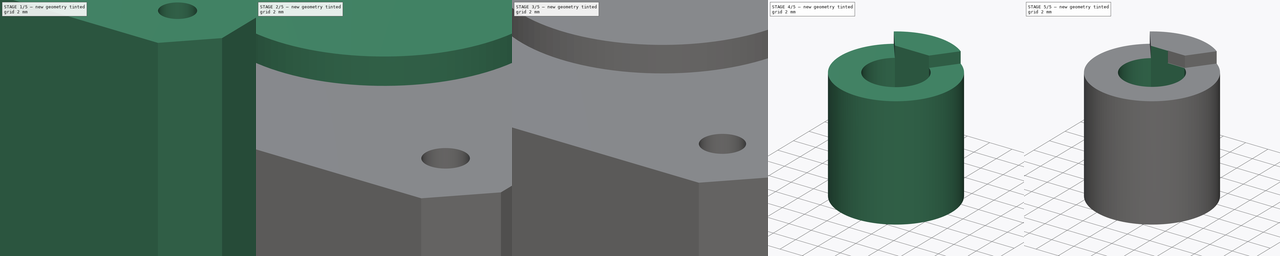
[diagram: build sequence overview — one tinted view per stage of 5, left to right]
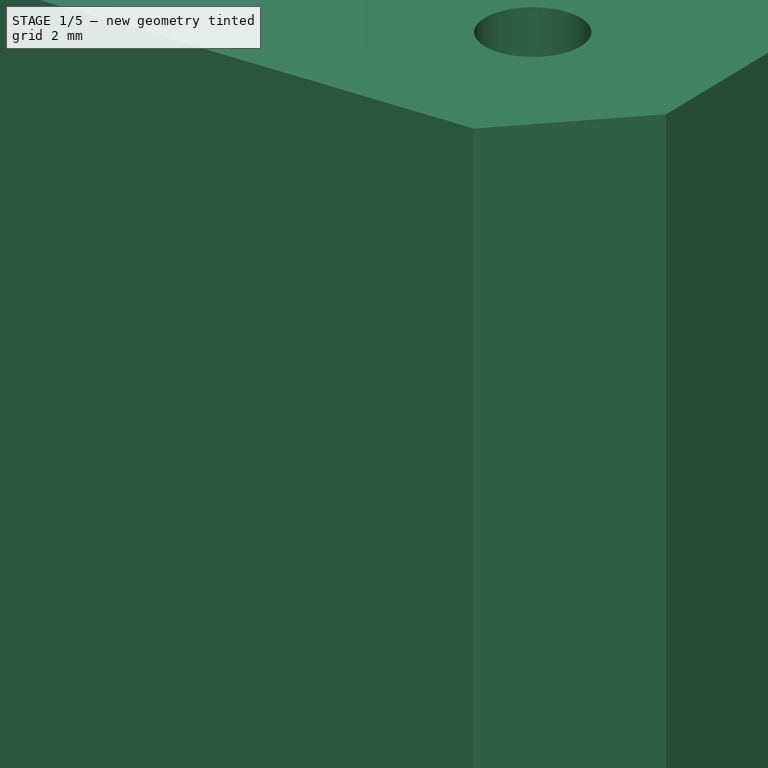
[diagram: stage 1 of 5 — iso view after this stage's code; geometry added in this stage tinted green]
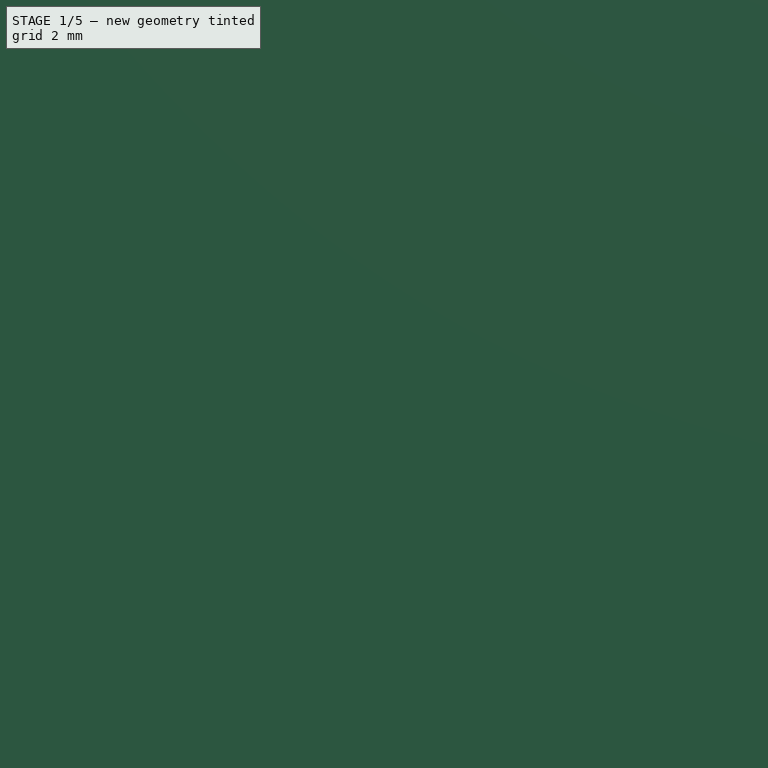
[diagram: stage 1 of 5 — front view after this stage's code; geometry added in this stage tinted green]
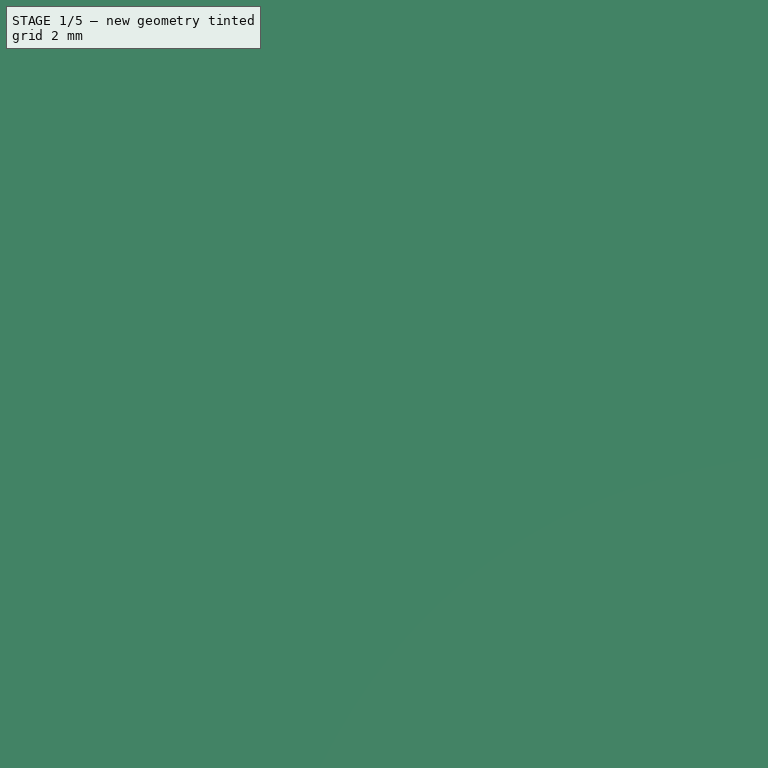
[diagram: stage 1 of 5 — top view after this stage's code; geometry added in this stage tinted green]
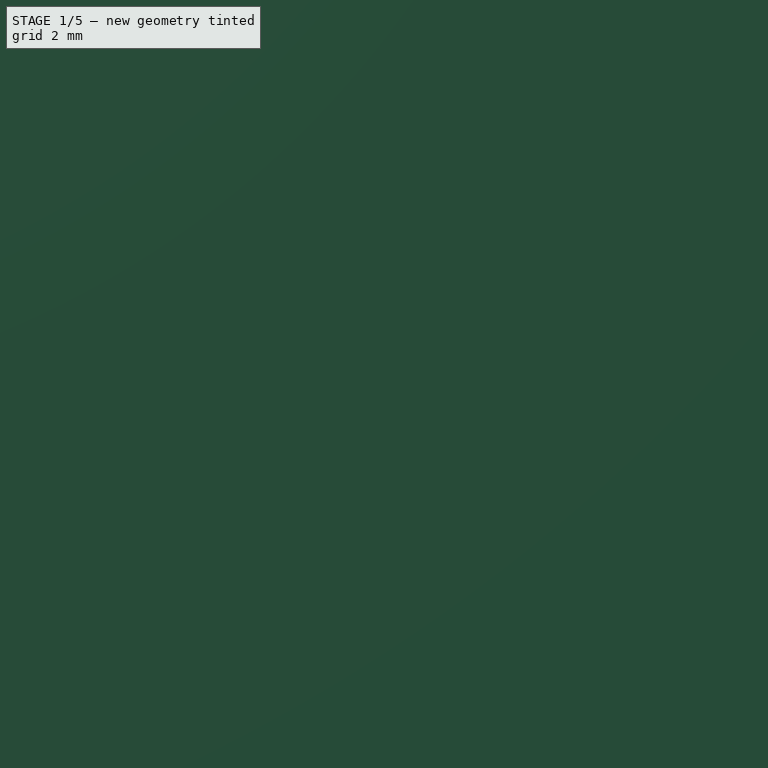
[diagram: stage 1 of 5 — right view after this stage's code; geometry added in this stage tinted green]
FCSTD DOCUMENT  (FreeCAD 0.21R33668 +26 (Git))
Label: fittings-test
License: All rights reserved
LicenseURL: http://en.wikipedia.org/wiki/All_rights_reserved
objects: Sketcher::SketchObject×15, PartDesign::Pad×13, PartDesign::Body×4, PartDesign::SubShapeBinder×3, PartDesign::Hole×2
note: 52 computed .brp shape members not serialized (recipe doc carries the construction recipe); baked Part::Feature solids carry a one-line shape summary decoded from their .brp

FEATURE [Sketcher::SketchObject] Sketch
  FullyConstrained = true
  MapMode = 5
  Support = -> [XY_Plane]
  sketch-geometry (18):
    g0: LineSegment StartX=-17.6145 StartY=21.15 StartZ=0 EndX=17.6145 EndY=21.15 EndZ=0
    g1: LineSegment StartX=17.6145 StartY=21.15 StartZ=0 EndX=21.15 EndY=17.6145 EndZ=0
    g2: LineSegment StartX=21.15 StartY=17.6145 StartZ=0 EndX=21.15 EndY=-17.6145 EndZ=0
    g3: LineSegment StartX=21.15 StartY=-17.6145 StartZ=0 EndX=17.6145 EndY=-21.15 EndZ=0
    g4: LineSegment StartX=17.6145 StartY=-21.15 StartZ=0 EndX=-17.6145 EndY=-21.15 EndZ=0
    g5: LineSegment StartX=-17.6145 StartY=-21.15 StartZ=0 EndX=-21.15 EndY=-17.6145 EndZ=0
    g6: LineSegment StartX=-21.15 StartY=-17.6145 StartZ=0 EndX=-21.15 EndY=17.6145 EndZ=0
    g7: LineSegment StartX=-21.15 StartY=17.6145 StartZ=0 EndX=-17.6145 EndY=21.15 EndZ=0
    g8: LineSegment StartX=-21.15 StartY=17.6145 StartZ=0 EndX=21.15 EndY=17.6145 EndZ=0
    g9: LineSegment StartX=-17.6145 StartY=-21.15 StartZ=0 EndX=-17.6145 EndY=21.15 EndZ=0
    g10: LineSegment StartX=17.6145 StartY=21.15 StartZ=0 EndX=17.6145 EndY=-21.15 EndZ=0
    g11: LineSegment StartX=21.15 StartY=-17.6145 StartZ=0 EndX=-21.15 EndY=-17.6145 EndZ=0
    g12: GeomPoint X=-17.6145 Y=17.6145 Z=0
    g13: GeomPoint X=17.6145 Y=17.6145 Z=0
    g14: GeomPoint X=17.6145 Y=-17.6145 Z=0
    g15: GeomPoint X=-17.6145 Y=-17.6145 Z=0
    g16: LineSegment StartX=-17.6145 StartY=17.6145 StartZ=0 EndX=17.6145 EndY=-17.6145 EndZ=0
    g17: LineSegment StartX=17.6145 StartY=17.6145 StartZ=0 EndX=-17.6145 EndY=-17.6145 EndZ=0
  constraints (44):
    c: Horizontal(g0)
    c: Coincident(g1,g0)
    c: Coincident(g2,g1)
    c: Vertical(g2)
    c: Coincident(g3,g2)
    c: Coincident(g4,g3)
    c: Horizontal(g4)
    c: Coincident(g5,g4)
    c: Coincident(g6,g5)
    c: Vertical(g6)
    c: Coincident(g7,g6)
    c: Coincident(g7,g0)
    c: Coincident(g8,g6)
    c: Coincident(g8,g1)
    c: Horizontal(g8)
    c: Coincident(g9,g4)
    c: Coincident(g9,g0)
    c: Vertical(g9)
    c: Distance(g8) = 42.3
    c: Distance(g9) = 42.3
    c: Equal(g3,g5)
    c: Equal(g1,g3)
    c: Equal(g7,g1)
    c: Coincident(g10,g0)
    c: Coincident(g10,g3)
    c: Vertical(g10)
    c: Coincident(g11,g2)
    c: Coincident(g11,g5)
    c: PointOnObject(g12,g8)
    c: PointOnObject(g13,g8)
    c: PointOnObject(g14,g11)
    c: PointOnObject(g15,g9)
    c: PointOnObject(g12,g9)
    c: PointOnObject(g14,g10)
    c: PointOnObject(g15,g11)
    c: Coincident(g16,g12)
    c: Coincident(g16,g14)
    c: Coincident(g17,g13)
    c: Coincident(g17,g15)
    c: PointOnObject(g-1,g16)
    c: PointOnObject(g13,g10)
    c: PointOnObject(g-1,g17)
    c: Equal(g2,g4)
    c: Distance(g1) = 5
FEATURE [PartDesign::Pad] Pad
  Direction = (0,0,1)
  Length = 40
  Length2 = 10
  Profile = -> Sketch
  ReferenceAxis = -> Sketch [N_Axis]
  Type = 0
FEATURE [Sketcher::SketchObject] Sketch001
  FullyConstrained = true
  MapMode = 5
  Placement = pos=(0,0,40) rot=(0,0,1;0rad)
  Support = -> [Pad]
  sketch-geometry (10):
    g0: Circle CenterX=15.5 CenterY=15.5 CenterZ=0 NormalX=0 NormalY=0 NormalZ=1 AngleXU=0 Radius=1.5
    g1: Circle CenterX=-15.5 CenterY=15.5 CenterZ=0 NormalX=0 NormalY=0 NormalZ=1 AngleXU=0 Radius=1.5
    g2: Circle CenterX=-15.5 CenterY=-15.5 CenterZ=0 NormalX=0 NormalY=0 NormalZ=1 AngleXU=0 Radius=1.5
    g3: Circle CenterX=15.5 CenterY=-15.5 CenterZ=0 NormalX=0 NormalY=0 NormalZ=1 AngleXU=0 Radius=1.5
    g4: LineSegment StartX=-15.5 StartY=15.5 StartZ=0 EndX=15.5 EndY=15.5 EndZ=0
    g5: LineSegment StartX=15.5 StartY=15.5 StartZ=0 EndX=15.5 EndY=-15.5 EndZ=0
    g6: LineSegment StartX=15.5 StartY=-15.5 StartZ=0 EndX=-15.5 EndY=-15.5 EndZ=0
    g7: LineSegment StartX=-15.5 StartY=-15.5 StartZ=0 EndX=-15.5 EndY=15.5 EndZ=0
    g8: LineSegment StartX=-15.5 StartY=15.5 StartZ=0 EndX=15.5 EndY=-15.5 EndZ=0
    g9: LineSegment StartX=15.5 StartY=15.5 StartZ=0 EndX=-15.5 EndY=-15.5 EndZ=0
  constraints (24):
    c: Diameter(g0) = 3
    c: Equal(g1,g0)
    c: Equal(g1,g2)
    c: Equal(g0,g3)
    c: Coincident(g4,g5)
    c: Coincident(g5,g6)
    c: Coincident(g6,g7)
    c: Coincident(g7,g4)
    c: Horizontal(g4)
    c: Horizontal(g6)
    c: Vertical(g5)
    c: Vertical(g7)
    c: Coincident(g4,g1)
    c: Coincident(g5,g3)
    c: Coincident(g4,g0)
    c: Coincident(g6,g2)
    c: Distance(g4) = 31
    c: Coincident(g8,g1)
    c: Coincident(g8,g3)
    c: Coincident(g9,g0)
    c: Coincident(g9,g2)
    c: PointOnObject(g-1,g8)
    c: PointOnObject(g-1,g9)
    c: Equal(g4,g5)
FEATURE [PartDesign::Hole] Hole
  BaseFeature = -> Pad
  CustomThreadClearance = 0
  Depth = 4.5
  DepthType = 0
  Diameter = 3
  DrillForDepth = false
  DrillPoint = 1
  DrillPointAngle = 118
  HoleCutCountersinkAngle = 90
  HoleCutCustomValues = false
  HoleCutDepth = 0
  HoleCutDiameter = 6.1
  HoleCutType = 0
  ModelThread = false
  Profile = -> Sketch001
  Tapered = false
  TaperedAngle = 90
  ThreadClass = 0
  ThreadDepth = 4.5
  ThreadDepthType = 0
  ThreadDirection = 0
  ThreadFit = 0
  ThreadSize = 0
  ThreadType = 0
  Threaded = false
  UseCustomThreadClearance = false
FEATURE [Sketcher::SketchObject] Sketch002
  ExternalGeometry = -> [Hole]
  FullyConstrained = true
  MapMode = 5
  Support = -> [XY_Plane]
  sketch-geometry (4):
    g0: Circle CenterX=-15.5 CenterY=15.5 CenterZ=0 NormalX=0 NormalY=0 NormalZ=1 AngleXU=0 Radius=1.5
    g1: Circle CenterX=-15.5 CenterY=-15.5 CenterZ=0 NormalX=0 NormalY=0 NormalZ=1 AngleXU=0 Radius=1.5
    g2: Circle CenterX=15.5 CenterY=-15.5 CenterZ=0 NormalX=0 NormalY=0 NormalZ=1 AngleXU=0 Radius=1.5
    g3: Circle CenterX=15.5 CenterY=15.5 CenterZ=0 NormalX=0 NormalY=0 NormalZ=1 AngleXU=0 Radius=1.5
  constraints (8):
    c: Coincident(g0,g-3)
    c: Coincident(g1,g-6)
    c: Coincident(g2,g-5)
    c: Coincident(g3,g-4)
    c: Equal(g-3,g1)
    c: Equal(g2,g-3)
    c: Equal(g-4,g0)
    c: Equal(g0,g3)
FEATURE [PartDesign::Hole] Hole001
  BaseFeature = -> Hole
  CustomThreadClearance = 0
  Depth = 4.5
  DepthType = 0
  Diameter = 3
  DrillForDepth = false
  DrillPoint = 1
  DrillPointAngle = 118
  HoleCutCountersinkAngle = 90
  HoleCutCustomValues = false
  HoleCutDepth = 0
  HoleCutDiameter = 6.1
  HoleCutType = 0
  ModelThread = false
  Profile = -> Sketch002
  Reversed = true
  Tapered = false
  TaperedAngle = 90
  ThreadClass = 0
  ThreadDepth = 4.5
  ThreadDepthType = 0
  ThreadDirection = 0
  ThreadFit = 0
  ThreadSize = 0
  ThreadType = 0
  Threaded = false
  UseCustomThreadClearance = false
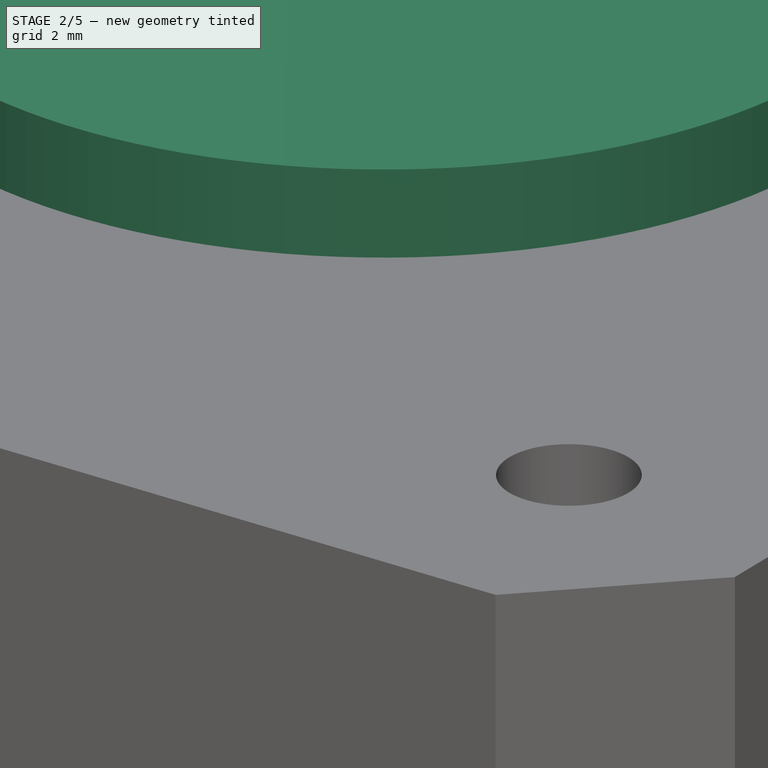
[diagram: stage 2 of 5 — iso view after this stage's code; geometry added in this stage tinted green]
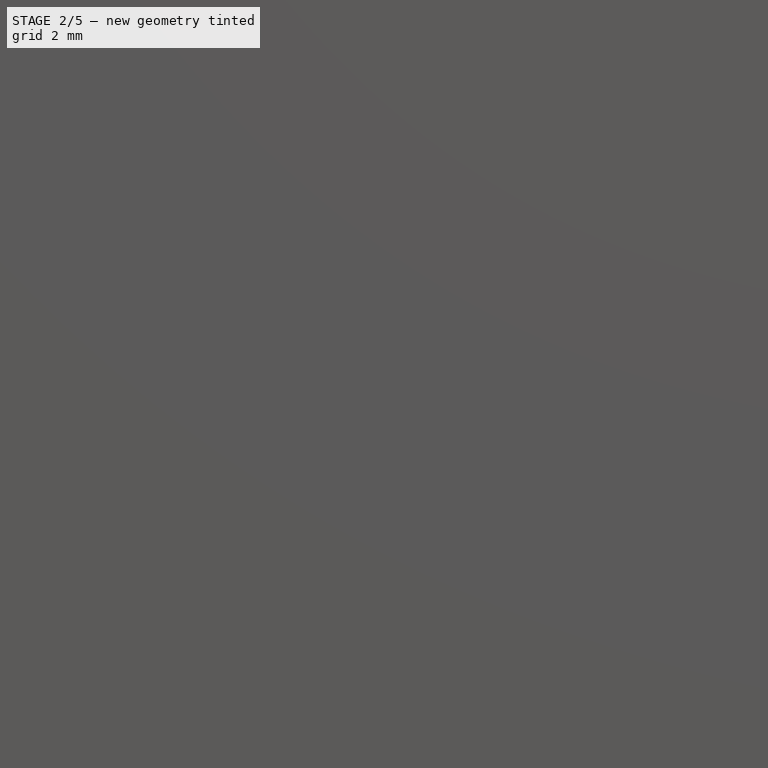
[diagram: stage 2 of 5 — front view after this stage's code; geometry added in this stage tinted green]
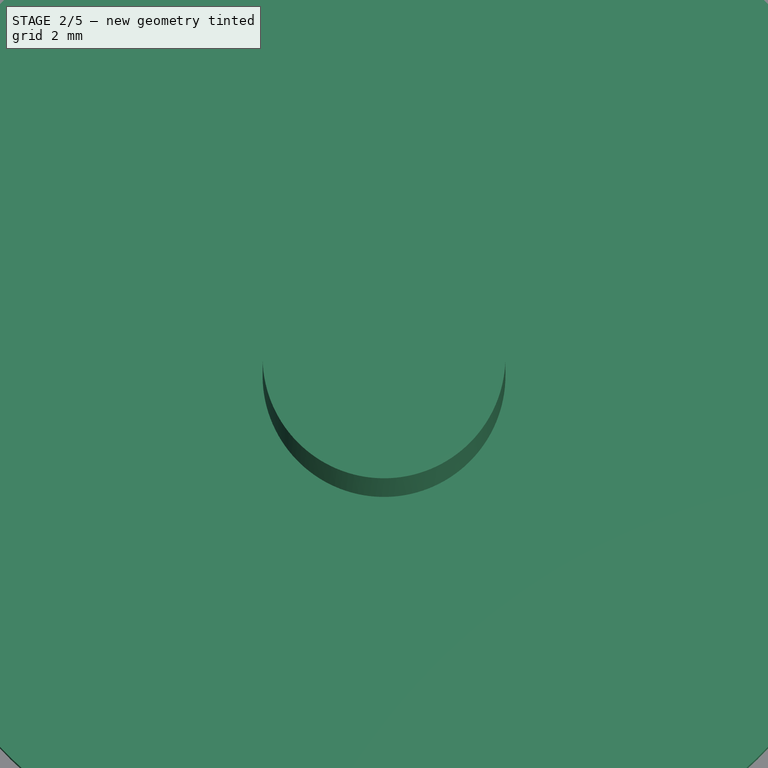
[diagram: stage 2 of 5 — top view after this stage's code; geometry added in this stage tinted green]
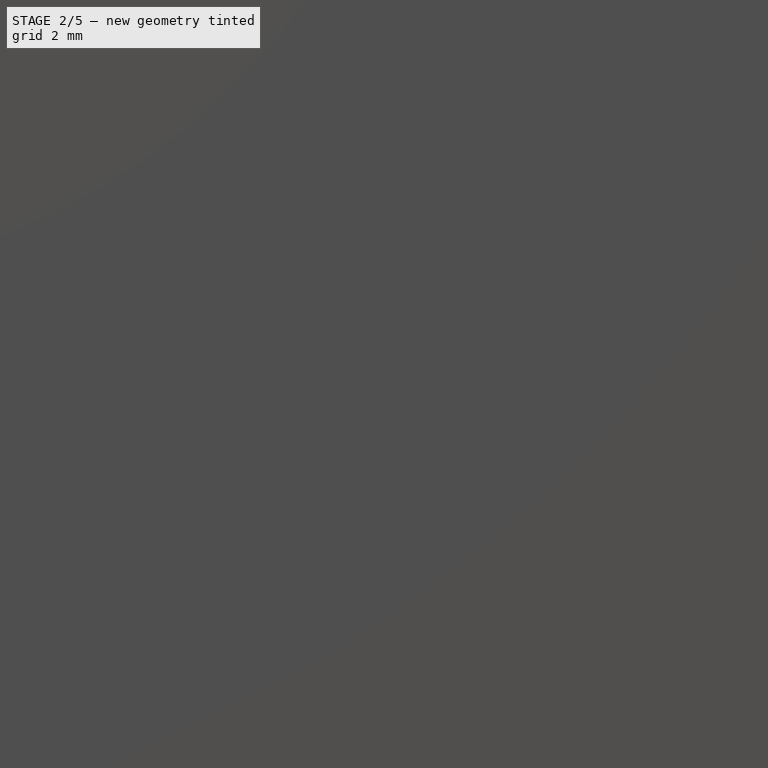
[diagram: stage 2 of 5 — right view after this stage's code; geometry added in this stage tinted green]
FEATURE [Sketcher::SketchObject] Sketch003
  FullyConstrained = true
  MapMode = 5
  Placement = pos=(0,0,40) rot=(0,0,1;0rad)
  Support = -> [Hole001]
  sketch-geometry (1):
    g0: Circle CenterX=0 CenterY=0 CenterZ=0 NormalX=0 NormalY=0 NormalZ=1 AngleXU=0 Radius=11
  constraints (2):
    c: Coincident(g0,g-1)
    c: Diameter(g0) = 22
FEATURE [PartDesign::Pad] Pad001
  BaseFeature = -> Hole001
  Direction = (0,0,1)
  Length = 2
  Length2 = 10
  Profile = -> Sketch003
  ReferenceAxis = -> Sketch003 [N_Axis]
  Type = 0
FEATURE [Sketcher::SketchObject] Sketch004
  FullyConstrained = true
  MapMode = 5
  Placement = pos=(0,0,42) rot=(0,0,1;0rad)
  Support = -> [Pad001]
  sketch-geometry (4):
    g0: ArcOfCircle CenterX=0 CenterY=0 CenterZ=0 NormalX=0 NormalY=0 NormalZ=1 AngleXU=0 Radius=2.5 StartAngle=2.2143 EndAngle=7.21048
    g1: LineSegment StartX=-1.5 StartY=2 StartZ=0 EndX=1.5 EndY=2 EndZ=0
    g2: GeomPoint X=0 Y=2 Z=0
    g3: GeomPoint X=0 Y=-2.5 Z=0
  constraints (10):
    c: Coincident(g0,g-1)
    c: Coincident(g1,g0)
    c: Coincident(g1,g0)
    c: Parallel(g1,g-1)
    c: Diameter(g0) = 5
    c: PointOnObject(g2,g1)
    c: PointOnObject(g2,g-2)
    c: PointOnObject(g3,g0)
    c: Distance(g3,g2) = 4.5
    c: PointOnObject(g3,g-2)
FEATURE [PartDesign::Pad] Pad002
  BaseFeature = -> Pad001
  Direction = (0,0,1)
  Length = 22
  Length2 = 10
  Profile = -> Sketch004
  ReferenceAxis = -> Sketch004 [N_Axis]
  Type = 0
FEATURE [Sketcher::SketchObject] Sketch005
  FullyConstrained = true
  MapMode = 5
  Placement = pos=(0,0,42) rot=(0,0,1;0rad)
  Support = -> [Pad001]
  sketch-geometry (1):
    g0: Circle CenterX=0 CenterY=0 CenterZ=0 NormalX=0 NormalY=0 NormalZ=1 AngleXU=0 Radius=2.5
  constraints (2):
    c: Coincident(g0,g-1)
    c: Diameter(g0) = 5
FEATURE [PartDesign::Pad] Pad003
  BaseFeature = -> Pad002
  Direction = (0,0,1)
  Length = 3
  Length2 = 10
  Profile = -> Sketch005
  ReferenceAxis = -> Sketch005 [N_Axis]
  Type = 0
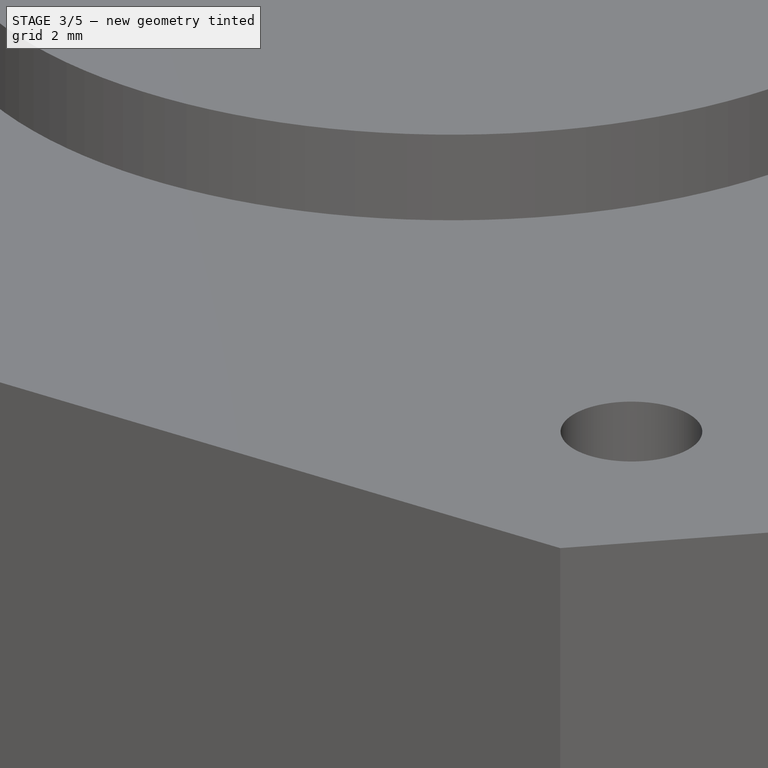
[diagram: stage 3 of 5 — iso view after this stage's code; geometry added in this stage tinted green]
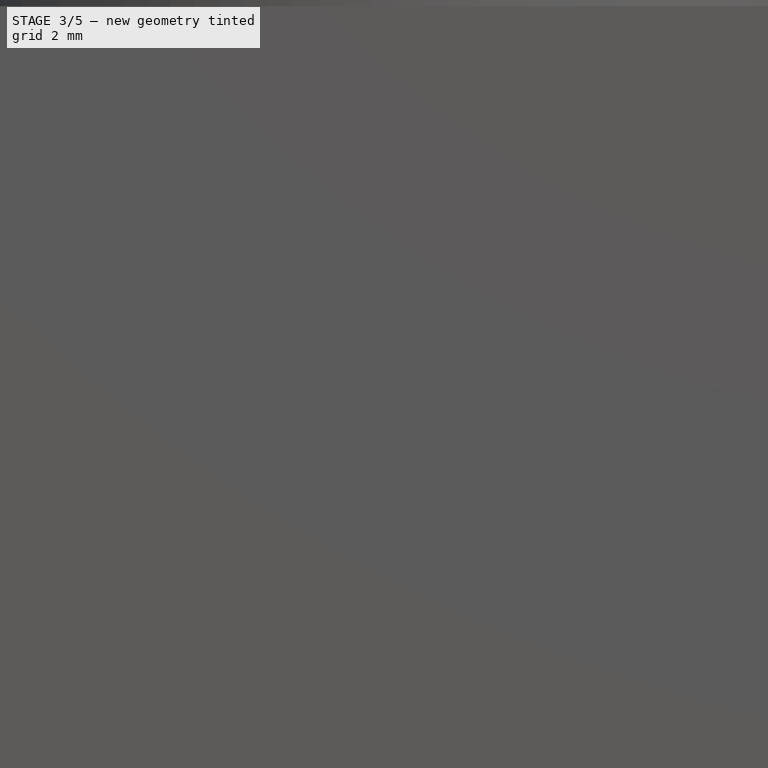
[diagram: stage 3 of 5 — front view after this stage's code; geometry added in this stage tinted green]
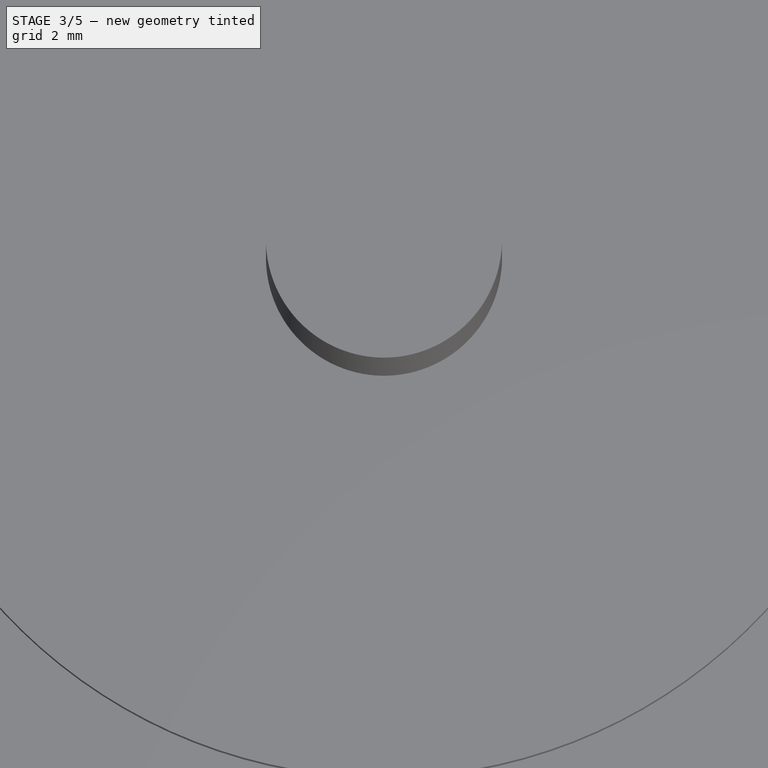
[diagram: stage 3 of 5 — top view after this stage's code; geometry added in this stage tinted green]
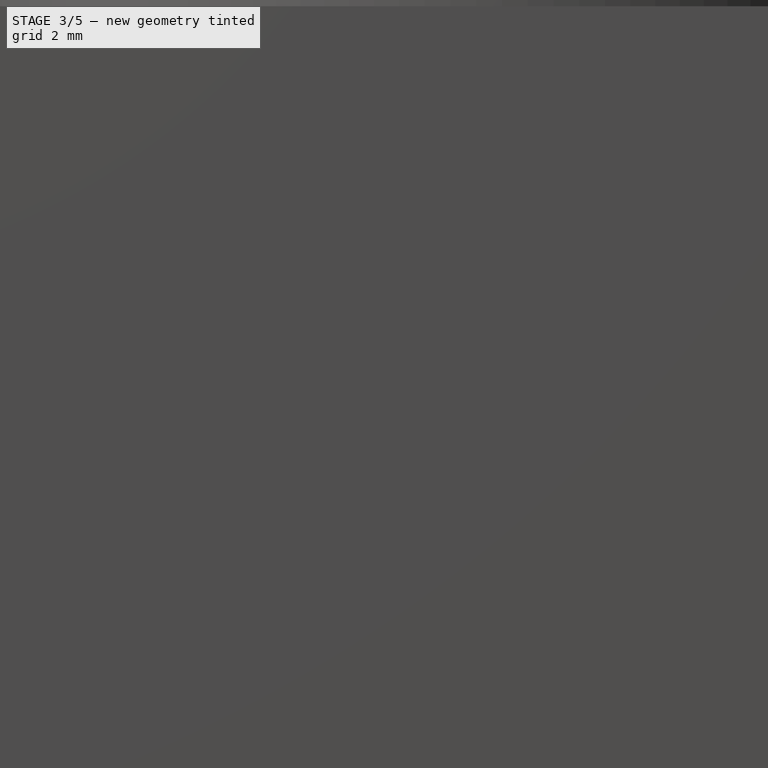
[diagram: stage 3 of 5 — right view after this stage's code; geometry added in this stage tinted green]
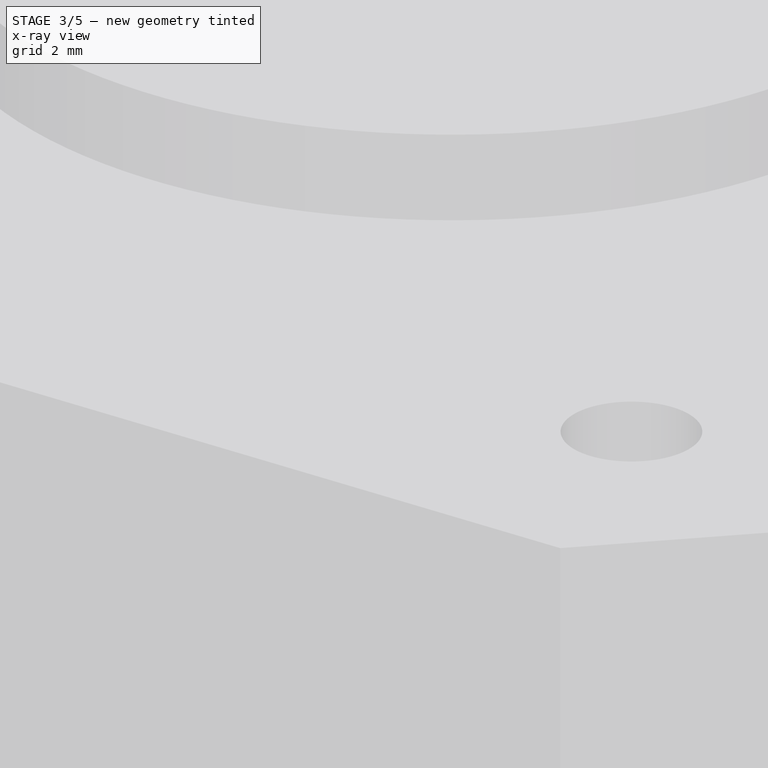
[diagram: stage 3 of 5 — x-ray composite at the iso view; earlier geometry ghosted, this stage's added geometry solid]
FEATURE [Sketcher::SketchObject] Sketch006
  ExternalGeometry = -> [Pad003]
  FullyConstrained = true
  MapMode = 5
  Placement = pos=(0,0,0) rot=(1,0,0;3.14159rad)
  Support = -> [Pad003]
  sketch-geometry (4):
    g0: LineSegment StartX=-8 StartY=21.15 StartZ=0 EndX=8 EndY=21.15 EndZ=0
    g1: LineSegment StartX=8 StartY=21.15 StartZ=0 EndX=8 EndY=25.15 EndZ=0
    g2: LineSegment StartX=8 StartY=25.15 StartZ=0 EndX=-8 EndY=25.15 EndZ=0
    g3: LineSegment StartX=-8 StartY=25.15 StartZ=0 EndX=-8 EndY=21.15 EndZ=0
  constraints (11):
    c: Coincident(g0,g1)
    c: Coincident(g1,g2)
    c: Coincident(g2,g3)
    c: Coincident(g3,g0)
    c: Horizontal(g2)
    c: Vertical(g1)
    c: Vertical(g3)
    c: PointOnObject(g0,g-3)
    c: Symmetric(g0,g0,g-2)
    c: Distance(g2) = 16
    c: Distance(g1) = 4
FEATURE [PartDesign::Pad] Pad004
  BaseFeature = -> Pad003
  Direction = (0,0,-1)
  Length = 2.5
  Length2 = 10
  Profile = -> Sketch006
  ReferenceAxis = -> Sketch006 [N_Axis]
  Reversed = true
  Type = 0
FEATURE [Sketcher::SketchObject] Sketch007
  ExternalGeometry = -> [Pad004]
  FullyConstrained = true
  MapMode = 5
  Placement = pos=(0,-21.15,0) rot=(1,0,0;1.5708rad)
  Support = -> [Pad004]
  sketch-geometry (14):
    g0: LineSegment StartX=-4.2 StartY=9 StartZ=0 EndX=-8 EndY=9 EndZ=0
    g1: LineSegment StartX=-8 StartY=9 StartZ=0 EndX=-8 EndY=2.5 EndZ=0
    g2: LineSegment StartX=-8 StartY=2.5 StartZ=0 EndX=8 EndY=2.5 EndZ=0
    g3: LineSegment StartX=8 StartY=2.5 StartZ=0 EndX=8 EndY=9 EndZ=0
    g4: LineSegment StartX=8 StartY=9 StartZ=0 EndX=4.2 EndY=9 EndZ=0
    g5: LineSegment StartX=4.2 StartY=9 StartZ=0 EndX=4.2 EndY=8.4 EndZ=0
    g6: LineSegment StartX=4.2 StartY=8.4 StartZ=0 EndX=7.4 EndY=8.4 EndZ=0
    g7: LineSegment StartX=7.4 StartY=8.4 StartZ=0 EndX=7.4 EndY=3.1 EndZ=0
    g8: LineSegment StartX=7.4 StartY=3.1 StartZ=0 EndX=-7.4 EndY=3.1 EndZ=0
    g9: LineSegment StartX=-7.4 StartY=3.1 StartZ=0 EndX=-7.4 EndY=8.4 EndZ=0
    g10: LineSegment StartX=-7.4 StartY=8.4 StartZ=0 EndX=-4.2 EndY=8.4 EndZ=0
    g11: LineSegment StartX=-4.2 StartY=8.4 StartZ=0 EndX=-4.2 EndY=9 EndZ=0
    g12: LineSegment StartX=7.4 StartY=3.1 StartZ=0 EndX=7.4 EndY=2.5 EndZ=0
    g13: LineSegment StartX=7.4 StartY=3.1 StartZ=0 EndX=8 EndY=3.1 EndZ=0
  constraints (39):
    c: Horizontal(g0)
    c: Coincident(g1,g0)
    c: Coincident(g1,g-3)
    c: Coincident(g2,g1)
    c: Coincident(g2,g-3)
    c: Coincident(g3,g2)
    c: Coincident(g4,g3)
    c: Horizontal(g4)
    c: Equal(g4,g0)
    c: Vertical(g1)
    c: Vertical(g3)
    c: Equal(g1,g3)
    c: Distance(g3) = 6.5
    c: Distance(g4) = 3.8
    c: Coincident(g5,g4)
    c: Vertical(g5)
    c: Coincident(g6,g5)
    c: Horizontal(g6)
    c: Coincident(g7,g6)
    c: Vertical(g7)
    c: Coincident(g8,g7)
    c: Horizontal(g8)
    c: Coincident(g9,g8)
    c: Vertical(g9)
    c: Coincident(g10,g9)
    c: Coincident(g11,g10)
    c: Coincident(g11,g0)
    c: Vertical(g11)
    c: Horizontal(g10)
    c: Distance(g5) = 0.6
    c: Symmetric(g9,g6,g-2)
    c: Coincident(g12,g7)
    c: PointOnObject(g12,g2)
    c: Vertical(g12)
    c: Equal(g12,g5)
    c: Coincident(g13,g7)
    c: PointOnObject(g13,g3)
    c: Horizontal(g13)
    c: Equal(g13,g5)
FEATURE [PartDesign::Pad] Pad005
  BaseFeature = -> Pad004
  Direction = (0,-1,2e-16)
  Length = 5
  Length2 = 10
  Profile = -> Sketch007
  ReferenceAxis = -> Sketch007 [N_Axis]
  Type = 0
FEATURE [Sketcher::SketchObject] Sketch008
  ExternalGeometry = -> [Pad005]
  FullyConstrained = true
  MapMode = 5
  Placement = pos=(0,-21.15,0) rot=(1,0,0;1.5708rad)
  Support = -> [Pad005]
  sketch-geometry (30):
    g0: LineSegment StartX=-5.5 StartY=6.6 StartZ=0 EndX=-5 EndY=6.6 EndZ=0
    g1: LineSegment StartX=-5 StartY=6.6 StartZ=0 EndX=-5 EndY=6.1 EndZ=0
    g2: LineSegment StartX=-5 StartY=6.1 StartZ=0 EndX=-5.5 EndY=6.1 EndZ=0
    g3: LineSegment StartX=-5.5 StartY=6.1 StartZ=0 EndX=-5.5 EndY=6.6 EndZ=0
    g4: LineSegment StartX=-3.4 StartY=6.6 StartZ=0 EndX=-2.9 EndY=6.6 EndZ=0
    g5: LineSegment StartX=-2.9 StartY=6.6 StartZ=0 EndX=-2.9 EndY=6.1 EndZ=0
    g6: LineSegment StartX=-2.9 StartY=6.1 StartZ=0 EndX=-3.4 EndY=6.1 EndZ=0
    g7: LineSegment StartX=-3.4 StartY=6.1 StartZ=0 EndX=-3.4 EndY=6.6 EndZ=0
    g8: LineSegment StartX=-1.3 StartY=6.6 StartZ=0 EndX=-0.8 EndY=6.6 EndZ=0
    g9: LineSegment StartX=-0.8 StartY=6.6 StartZ=0 EndX=-0.8 EndY=6.1 EndZ=0
    g10: LineSegment StartX=-0.8 StartY=6.1 StartZ=0 EndX=-1.3 EndY=6.1 EndZ=0
    g11: LineSegment StartX=-1.3 StartY=6.1 StartZ=0 EndX=-1.3 EndY=6.6 EndZ=0
    g12: LineSegment StartX=0.8 StartY=6.6 StartZ=0 EndX=1.3 EndY=6.6 EndZ=0
    g13: LineSegment StartX=1.3 StartY=6.6 StartZ=0 EndX=1.3 EndY=6.1 EndZ=0
    g14: LineSegment StartX=1.3 StartY=6.1 StartZ=0 EndX=0.8 EndY=6.1 EndZ=0
    g15: LineSegment StartX=0.8 StartY=6.1 StartZ=0 EndX=0.8 EndY=6.6 EndZ=0
    g16: LineSegment StartX=2.9 StartY=6.6 StartZ=0 EndX=3.4 EndY=6.6 EndZ=0
    g17: LineSegment StartX=3.4 StartY=6.6 StartZ=0 EndX=3.4 EndY=6.1 EndZ=0
    g18: LineSegment StartX=3.4 StartY=6.1 StartZ=0 EndX=2.9 EndY=6.1 EndZ=0
    g19: LineSegment StartX=2.9 StartY=6.1 StartZ=0 EndX=2.9 EndY=6.6 EndZ=0
    g20: LineSegment StartX=5 StartY=6.6 StartZ=0 EndX=5.5 EndY=6.6 EndZ=0
    g21: LineSegment StartX=5.5 StartY=6.6 StartZ=0 EndX=5.5 EndY=6.1 EndZ=0
    g22: LineSegment StartX=5.5 StartY=6.1 StartZ=0 EndX=5 EndY=6.1 EndZ=0
    g23: LineSegment StartX=5 StartY=6.1 StartZ=0 EndX=5 EndY=6.6 EndZ=0
    g24: LineSegment StartX=-7.4 StartY=6.1 StartZ=0 EndX=7.4 EndY=6.1 EndZ=0
    g25: LineSegment StartX=-5 StartY=6.6 StartZ=0 EndX=-3.4 EndY=6.6 EndZ=0
    g26: LineSegment StartX=-2.9 StartY=6.6 StartZ=0 EndX=-1.3 EndY=6.6 EndZ=0
    g27: LineSegment StartX=-0.8 StartY=6.6 StartZ=0 EndX=0.8 EndY=6.6 EndZ=0
    g28: LineSegment StartX=1.3 StartY=6.6 StartZ=0 EndX=2.9 EndY=6.6 EndZ=0
    g29: LineSegment StartX=3.4 StartY=6.6 StartZ=0 EndX=5 EndY=6.6 EndZ=0
  constraints (85):
    c: Coincident(g0,g1)
    c: Coincident(g1,g2)
    c: Coincident(g2,g3)
    c: Coincident(g3,g0)
    c: Horizontal(g0)
    c: Horizontal(g2)
    c: Vertical(g1)
    c: Vertical(g3)
    c: Coincident(g4,g5)
    c: Coincident(g5,g6)
    c: Coincident(g6,g7)
    c: Coincident(g7,g4)
    c: Horizontal(g4)
    c: Horizontal(g6)
    c: Vertical(g5)
    c: Vertical(g7)
    c: Coincident(g8,g9)
    c: Coincident(g9,g10)
    c: Coincident(g10,g11)
    c: Coincident(g11,g8)
    c: Horizontal(g8)
    c: Horizontal(g10)
    c: Vertical(g9)
    c: Vertical(g11)
    c: Coincident(g12,g13)
    c: Coincident(g13,g14)
    c: Coincident(g14,g15)
    c: Coincident(g15,g12)
    c: Horizontal(g12)
    c: Horizontal(g14)
    c: Vertical(g13)
    c: Vertical(g15)
    c: Coincident(g16,g17)
    c: Coincident(g17,g18)
    c: Coincident(g18,g19)
    c: Coincident(g19,g16)
    c: Horizontal(g16)
    c: Horizontal(g18)
    c: Vertical(g17)
    c: Vertical(g19)
    c: Coincident(g20,g21)
    c: Coincident(g21,g22)
    c: Coincident(g22,g23)
    c: Coincident(g23,g20)
    c: Horizontal(g20)
    c: Horizontal(g22)
    c: Vertical(g21)
    c: Vertical(g23)
    c: Equal(g20,g21)
    c: Equal(g16,g17)
    c: Equal(g12,g13)
    c: Equal(g8,g9)
    c: Equal(g4,g5)
    c: Equal(g0,g1)
    c: Equal(g1,g5)
    c: Equal(g5,g9)
    c: Equal(g9,g13)
    c: Equal(g13,g17)
    c: Equal(g17,g21)
    c: PointOnObject(g2,g24)
    c: PointOnObject(g6,g24)
    c: PointOnObject(g10,g24)
    c: PointOnObject(g24,g-4)
    c: Distance(g0) = 0.5
    c: Coincident(g25,g0)
    c: Coincident(g25,g4)
    c: Horizontal(g25)
    c: Coincident(g26,g4)
    c: Coincident(g26,g8)
    c: Coincident(g27,g8)
    c: Coincident(g27,g12)
    c: Horizontal(g27)
    c: Coincident(g28,g12)
    c: Coincident(g28,g16)
    c: Horizontal(g28)
    c: Coincident(g29,g16)
    c: Coincident(g29,g20)
    c: Equal(g25,g26)
    c: Equal(g26,g27)
    c: Equal(g27,g28)
    c: Equal(g28,g29)
    c: Distance(g25) = 1.6
    c: Distance(g24,g-5) = 3
    c: Symmetric(g2,g21,g-2)
    c: PointOnObject(g24,g-3)
FEATURE [PartDesign::Pad] Pad006
  BaseFeature = -> Pad005
  Direction = (0,-1,2e-16)
  Length = 4
  Length2 = 10
  Profile = -> Sketch008
  ReferenceAxis = -> Sketch008 [N_Axis]
  Type = 0
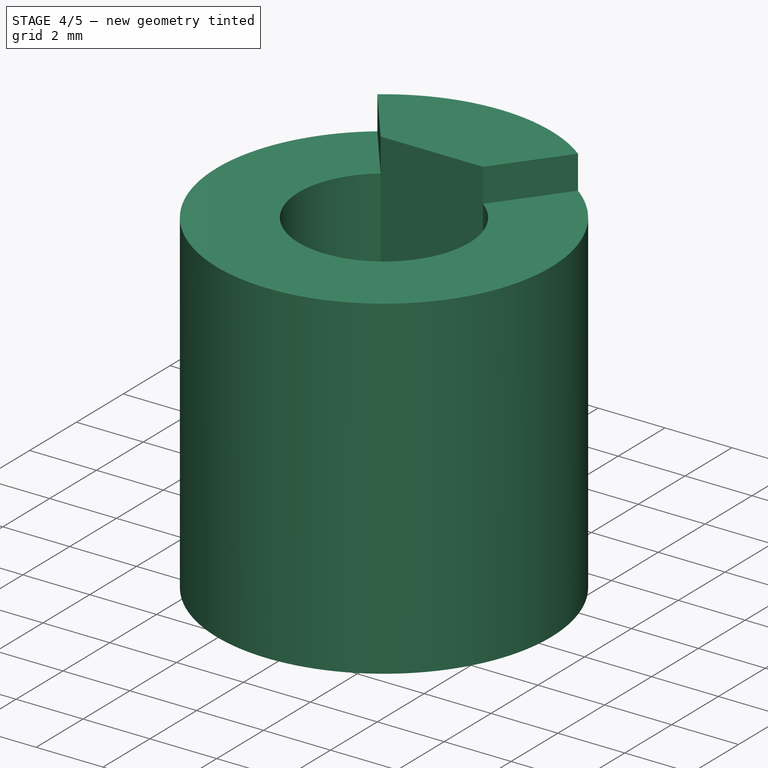
[diagram: stage 4 of 5 — iso view after this stage's code; geometry added in this stage tinted green]
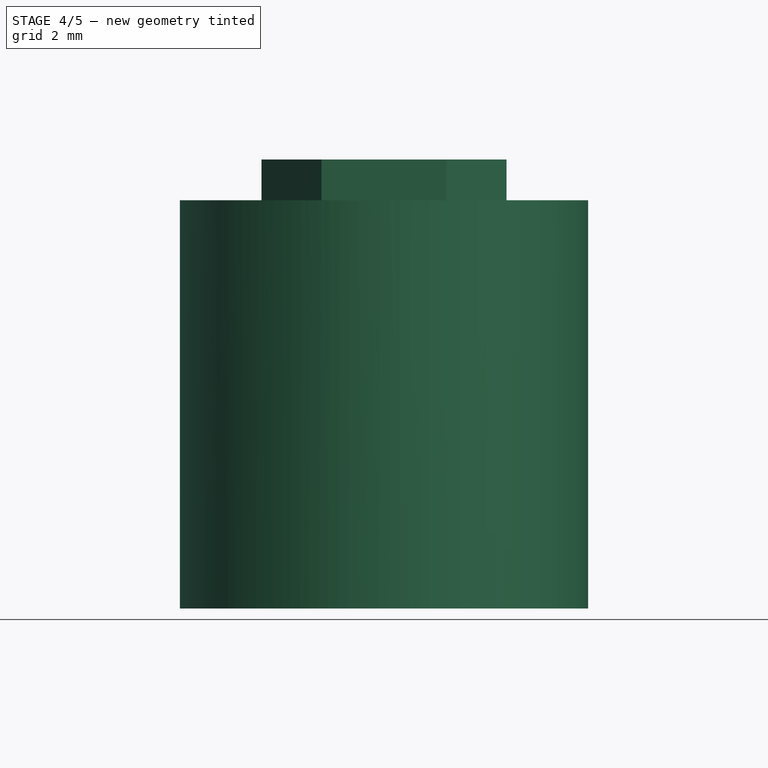
[diagram: stage 4 of 5 — front view after this stage's code; geometry added in this stage tinted green]
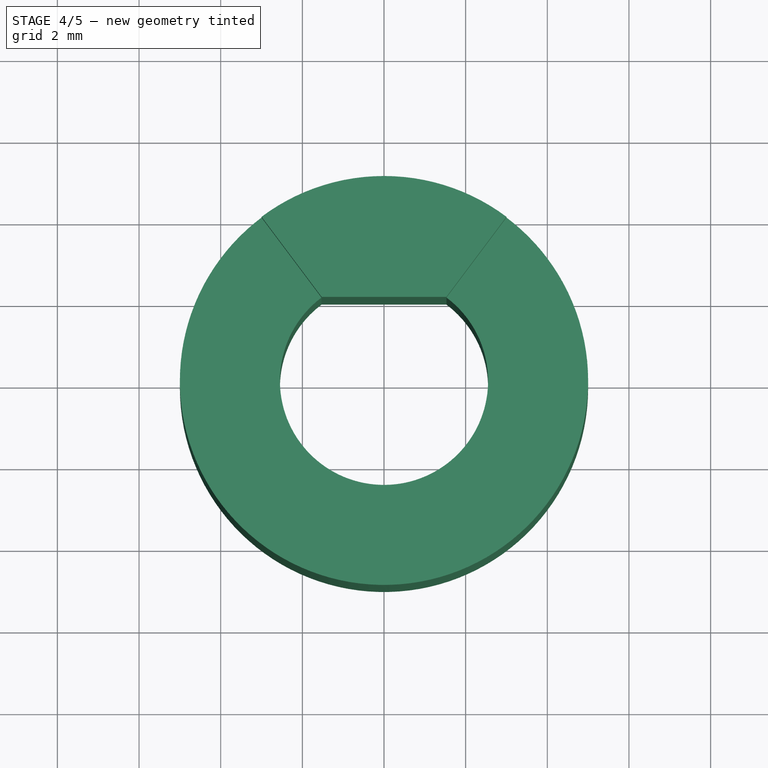
[diagram: stage 4 of 5 — top view after this stage's code; geometry added in this stage tinted green]
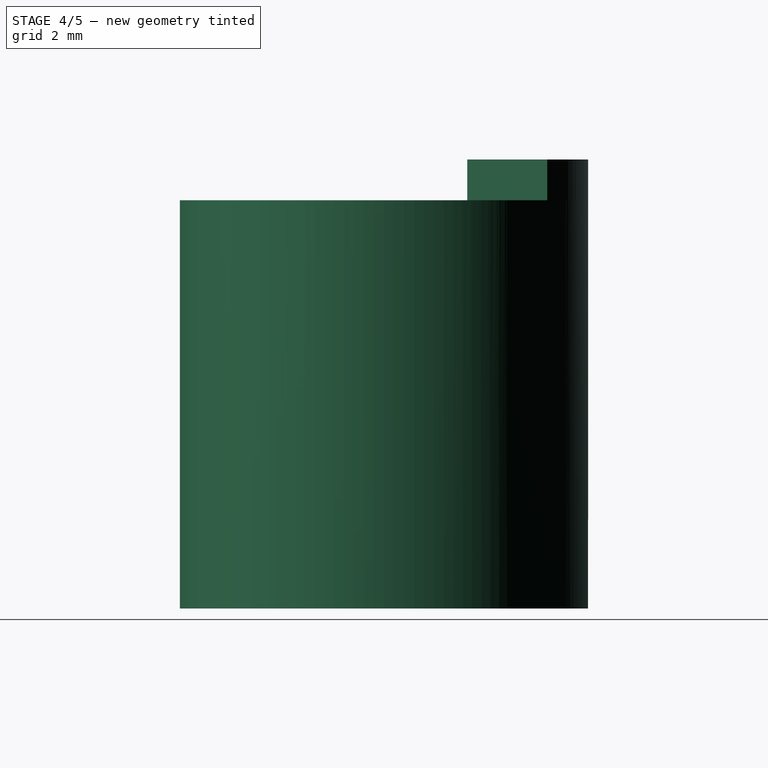
[diagram: stage 4 of 5 — right view after this stage's code; geometry added in this stage tinted green]
FEATURE [PartDesign::Body] Body  label="Motor"
  Group = -> [Sketch,Pad,Sketch001,Hole,Sketch002,Hole001,Sketch003,Pad001,Sketch004,Pad002,Sketch005,Pad003,Sketch006,Pad004,Sketch007,Pad005,Sketch008,Pad006]
  Origin = -> Origin
  Tip = -> Pad006
FEATURE [PartDesign::SubShapeBinder] Binder
  BindCopyOnChange = 0
  BindMode = 0
  ClaimChildren = false
  Context = -> Body001 [Binder.]
  Fuse = false
  MakeFace = true
  OffsetFill = false
  OffsetIntersection = false
  OffsetJoinType = 0
  OffsetOpenResult = false
  PartialLoad = false
  Relative = true
  Support = -> [Body[Pad006.Face82]]
  _Version = 2
FEATURE [Sketcher::SketchObject] Sketch009
  ExternalGeometry = -> [Binder]
  FullyConstrained = true
  MapMode = 5
  Placement = pos=(0,0,64) rot=(0,0,1;0rad)
  Support = -> [Binder]
  sketch-geometry (5):
    g0: ArcOfCircle CenterX=0 CenterY=0 CenterZ=0 NormalX=0 NormalY=0 NormalZ=1 AngleXU=0 Radius=2.625 StartAngle=2.2143 EndAngle=7.21048
    g1: LineSegment StartX=0 StartY=0 StartZ=0 EndX=-1.575 EndY=2.1 EndZ=0
    g2: LineSegment StartX=0 StartY=0 StartZ=0 EndX=1.575 EndY=2.1 EndZ=0
    g3: LineSegment StartX=-1.575 StartY=2.1 StartZ=0 EndX=1.575 EndY=2.1 EndZ=0
    g4: Circle CenterX=0 CenterY=0 CenterZ=0 NormalX=0 NormalY=0 NormalZ=1 AngleXU=0 Radius=5
  constraints (12):
    c: Coincident(g0,g-1)
    c: Coincident(g1,g0)
    c: Coincident(g1,g0)
    c: Coincident(g2,g0)
    c: Coincident(g2,g0)
    c: PointOnObject(g-3,g2)
    c: PointOnObject(g-3,g1)
    c: Coincident(g3,g0)
    c: Coincident(g3,g0)
    c: Diameter(g0) = 5.25
    c: Coincident(g4,g0)
    c: Diameter(g4) = 10
FEATURE [PartDesign::Pad] Pad007
  Direction = (0,0,1)
  Length = 10
  Length2 = 10
  Profile = -> Sketch009
  ReferenceAxis = -> Sketch009 [N_Axis]
  Type = 0
FEATURE [PartDesign::SubShapeBinder] Binder001
  BindCopyOnChange = 0
  BindMode = 0
  ClaimChildren = false
  Context = -> Body002 [Binder001.]
  Fuse = false
  MakeFace = true
  OffsetFill = false
  OffsetIntersection = false
  OffsetJoinType = 0
  OffsetOpenResult = false
  PartialLoad = false
  Relative = true
  Support = -> [Body[Pad006.Face82]]
  _Version = 2
FEATURE [Sketcher::SketchObject] Sketch010
  ExternalGeometry = -> [Binder001]
  FullyConstrained = true
  MapMode = 5
  Placement = pos=(0,0,64) rot=(0,0,1;0rad)
  Support = -> [Binder001]
  sketch-geometry (5):
    g0: ArcOfCircle CenterX=0 CenterY=0 CenterZ=0 NormalX=0 NormalY=0 NormalZ=1 AngleXU=0 Radius=2.55 StartAngle=2.2143 EndAngle=7.21048
    g1: LineSegment StartX=0 StartY=0 StartZ=0 EndX=1.53 EndY=2.04 EndZ=0
    g2: LineSegment StartX=5.144e-13 StartY=0 StartZ=0 EndX=-1.53 EndY=2.04 EndZ=0
    g3: LineSegment StartX=-1.53 StartY=2.04 StartZ=0 EndX=1.53 EndY=2.04 EndZ=0
    g4: Circle CenterX=0 CenterY=0 CenterZ=0 NormalX=0 NormalY=0 NormalZ=1 AngleXU=0 Radius=5
  constraints (13):
    c: Coincident(g0,g-3)
    c: Coincident(g1,g0)
    c: Coincident(g1,g0)
    c: PointOnObject(g2,g-1)
    c: Coincident(g2,g0)
    c: PointOnObject(g-3,g2)
    c: PointOnObject(g-3,g1)
    c: Coincident(g3,g0)
    c: Coincident(g3,g0)
    c: Horizontal(g3)
    c: Diameter(g0) = 5.1
    c: Coincident(g4,g0)
    c: Diameter(g4) = 10
FEATURE [PartDesign::Pad] Pad008
  Direction = (0,0,1)
  Length = 10
  Length2 = 10
  Profile = -> Sketch010
  ReferenceAxis = -> Sketch010 [N_Axis]
  Type = 0
FEATURE [PartDesign::Body] Body001  label="Fitting-5.25mm"
  Group = -> [Binder,Sketch009,Pad007,Sketch013,Pad011]
  Origin = -> Origin001
  Tip = -> Pad011
FEATURE [Sketcher::SketchObject] Sketch014
  ExternalGeometry = -> [Pad008]
  FullyConstrained = true
  MapMode = 5
  Placement = pos=(0,0,74) rot=(0,0,1;0rad)
  Support = -> [Pad008]
  sketch-geometry (6):
    g0: ArcOfCircle CenterX=0 CenterY=0 CenterZ=0 NormalX=0 NormalY=0 NormalZ=1 AngleXU=0 Radius=5 StartAngle=0.927295 EndAngle=2.2143
    g1: LineSegment StartX=0 StartY=0 StartZ=0 EndX=-1.53 EndY=2.04 EndZ=0
    g2: LineSegment StartX=0 StartY=0 StartZ=0 EndX=1.53 EndY=2.04 EndZ=0
    g3: LineSegment StartX=-1.53 StartY=2.04 StartZ=0 EndX=-3 EndY=4 EndZ=0
    g4: LineSegment StartX=1.53 StartY=2.04 StartZ=0 EndX=3 EndY=4 EndZ=0
    g5: LineSegment StartX=-1.53 StartY=2.04 StartZ=0 EndX=1.53 EndY=2.04 EndZ=0
  constraints (12):
    c: Coincident(g0,g-4)
    c: PointOnObject(g0,g-4)
    c: Coincident(g1,g0)
    c: Coincident(g1,g-3)
    c: Coincident(g2,g0)
    c: Coincident(g2,g-3)
    c: Coincident(g3,g0)
    c: Coincident(g4,g0)
    c: Tangent(g4,g2) = -1.5708
    c: Tangent(g3,g1) = -1.5708
    c: Coincident(g5,g3)
    c: Coincident(g5,g4)
FEATURE [PartDesign::Pad] Pad012
  BaseFeature = -> Pad008
  Direction = (0,0,1)
  Length = 1
  Length2 = 10
  Profile = -> Sketch014
  ReferenceAxis = -> Sketch014 [N_Axis]
  Type = 0
FEATURE [PartDesign::Body] Body002  label="Fitting-5.1mm"
  Group = -> [Binder001,Sketch010,Pad008,Sketch014,Pad012]
  Origin = -> Origin002
  Tip = -> Pad012
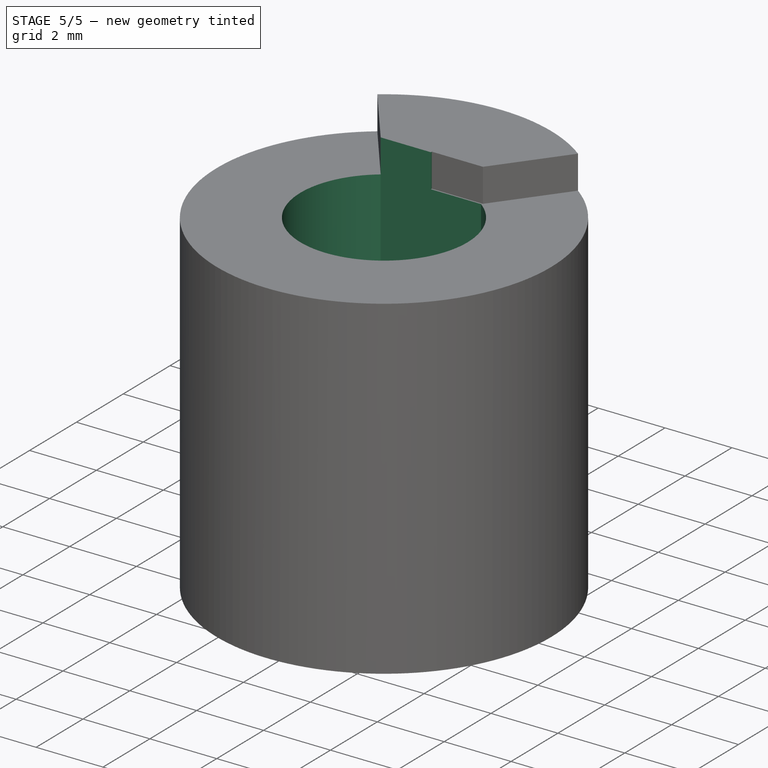
[diagram: stage 5 of 5 — iso view after this stage's code; geometry added in this stage tinted green]
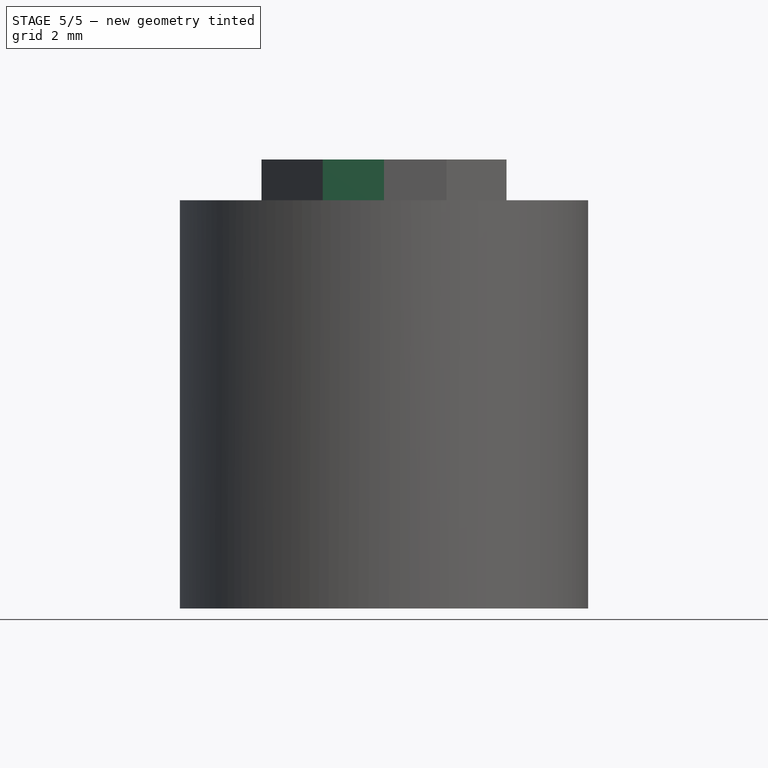
[diagram: stage 5 of 5 — front view after this stage's code; geometry added in this stage tinted green]
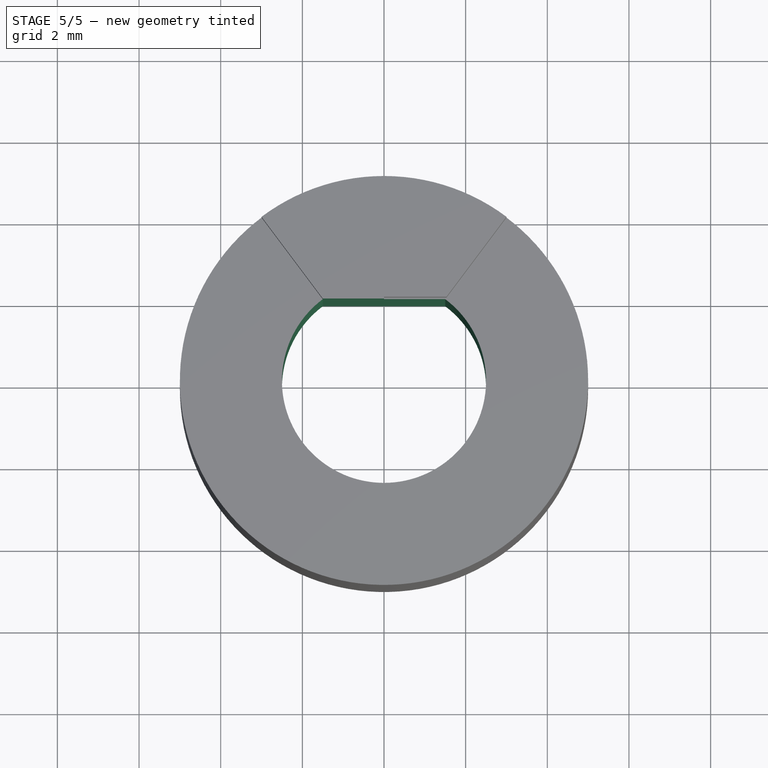
[diagram: stage 5 of 5 — top view after this stage's code; geometry added in this stage tinted green]
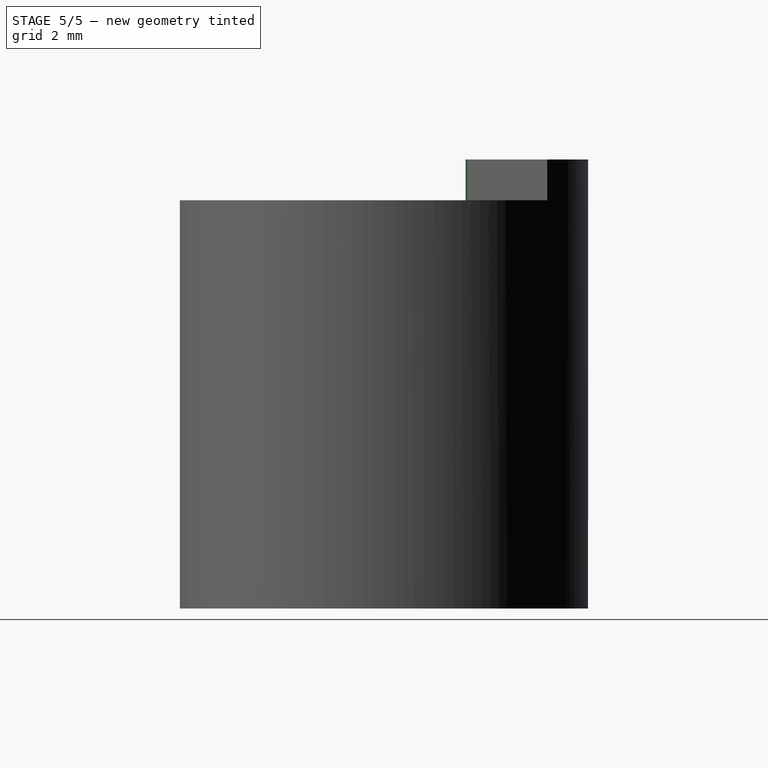
[diagram: stage 5 of 5 — right view after this stage's code; geometry added in this stage tinted green]
FEATURE [PartDesign::SubShapeBinder] Binder002
  BindCopyOnChange = 0
  BindMode = 0
  ClaimChildren = false
  Context = -> Body003 [Binder002.]
  Fuse = false
  MakeFace = true
  OffsetFill = false
  OffsetIntersection = false
  OffsetJoinType = 0
  OffsetOpenResult = false
  PartialLoad = false
  Relative = true
  Support = -> [Body[Pad006.Face82]]
  _Version = 2
FEATURE [Sketcher::SketchObject] Sketch011
  ExternalGeometry = -> [Binder002]
  FullyConstrained = true
  MapMode = 5
  Placement = pos=(0,0,64) rot=(0,0,1;0rad)
  Support = -> [Binder002]
  sketch-geometry (3):
    g0: ArcOfCircle CenterX=0 CenterY=0 CenterZ=0 NormalX=0 NormalY=0 NormalZ=1 AngleXU=0 Radius=2.5 StartAngle=2.2143 EndAngle=7.21048
    g1: LineSegment StartX=-1.5 StartY=2 StartZ=0 EndX=1.5 EndY=2 EndZ=0
    g2: Circle CenterX=0 CenterY=0 CenterZ=0 NormalX=0 NormalY=0 NormalZ=1 AngleXU=0 Radius=5
  constraints (7):
    c: Coincident(g0,g-3)
    c: Coincident(g0,g-4)
    c: Coincident(g1,g0)
    c: Coincident(g1,g0)
    c: Horizontal(g1)
    c: Coincident(g2,g0)
    c: Diameter(g2) = 10
FEATURE [PartDesign::Pad] Pad009
  Direction = (0,0,1)
  Length = 10
  Length2 = 10
  Profile = -> Sketch011
  ReferenceAxis = -> Sketch011 [N_Axis]
  Type = 0
FEATURE [Sketcher::SketchObject] Sketch012
  ExternalGeometry = -> [Pad009]
  FullyConstrained = true
  MapMode = 5
  Placement = pos=(0,0,74) rot=(0,0,1;0rad)
  Support = -> [Pad009]
  sketch-geometry (5):
    g0: ArcOfCircle CenterX=0 CenterY=0 CenterZ=0 NormalX=0 NormalY=0 NormalZ=1 AngleXU=0 Radius=5 StartAngle=1.5708 EndAngle=2.2143
    g1: LineSegment StartX=0 StartY=5 StartZ=0 EndX=0 EndY=2 EndZ=0
    g2: LineSegment StartX=0 StartY=2 StartZ=0 EndX=-1.5 EndY=2 EndZ=0
    g3: LineSegment StartX=-1.5 StartY=2 StartZ=0 EndX=-3 EndY=4 EndZ=0
    g4: LineSegment StartX=0 StartY=0 StartZ=0 EndX=-1.5 EndY=2 EndZ=0
  constraints (13):
    c: Coincident(g0,g-4)
    c: PointOnObject(g0,g-4)
    c: Coincident(g1,g0)
    c: PointOnObject(g1,g-3)
    c: Vertical(g1)
    c: Coincident(g2,g1)
    c: Coincident(g2,g-3)
    c: Coincident(g3,g2)
    c: Coincident(g3,g0)
    c: Coincident(g4,g0)
    c: Coincident(g4,g2)
    c: Tangent(g4,g3)
    c: PointOnObject(g1,g-2)
FEATURE [PartDesign::Pad] Pad010
  BaseFeature = -> Pad009
  Direction = (0,0,1)
  Length = 1
  Length2 = 10
  Profile = -> Sketch012
  ReferenceAxis = -> Sketch012 [N_Axis]
  Type = 0
FEATURE [PartDesign::Body] Body003  label="Fitting-5.0mm"
  Group = -> [Binder002,Sketch011,Pad009,Sketch012,Pad010]
  Origin = -> Origin003
  Tip = -> Pad010
FEATURE [Sketcher::SketchObject] Sketch013
  ExternalGeometry = -> [Pad007]
  FullyConstrained = true
  MapMode = 5
  Placement = pos=(0,0,74) rot=(0,0,1;0rad)
  Support = -> [Pad007]
  sketch-geometry (5):
    g0: ArcOfCircle CenterX=0 CenterY=0 CenterZ=0 NormalX=0 NormalY=0 NormalZ=1 AngleXU=0 Radius=5 StartAngle=0.927295 EndAngle=1.5708
    g1: LineSegment StartX=0 StartY=0 StartZ=0 EndX=1.575 EndY=2.1 EndZ=0
    g2: LineSegment StartX=1.575 StartY=2.1 StartZ=0 EndX=3 EndY=4 EndZ=0
    g3: LineSegment StartX=1.575 StartY=2.1 StartZ=0 EndX=0 EndY=2.1 EndZ=0
    g4: LineSegment StartX=0 StartY=2.1 StartZ=0 EndX=0 EndY=5 EndZ=0
  constraints (12):
    c: Coincident(g0,g-4)
    c: PointOnObject(g0,g-4)
    c: Coincident(g1,g0)
    c: Coincident(g1,g-3)
    c: PointOnObject(g3,g-2)
    c: Horizontal(g3)
    c: Coincident(g4,g3)
    c: Coincident(g4,g0)
    c: Vertical(g4)
    c: Tangent(g2,g1) = -1.5708
    c: Coincident(g0,g2)
    c: Coincident(g3,g2)
FEATURE [PartDesign::Pad] Pad011
  BaseFeature = -> Pad007
  Direction = (0,0,1)
  Length = 1
  Length2 = 10
  Profile = -> Sketch013
  ReferenceAxis = -> Sketch013 [N_Axis]
  Type = 0
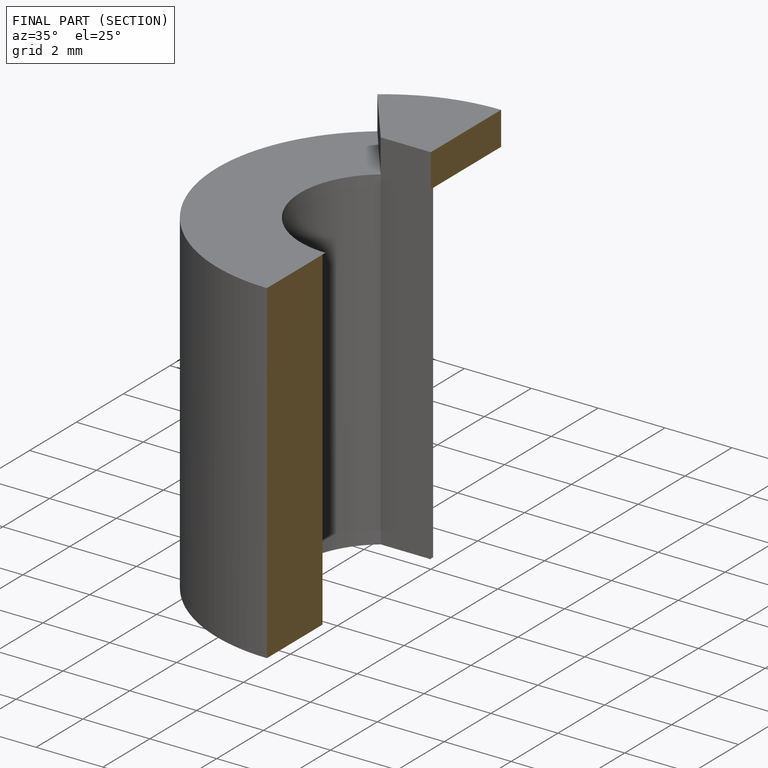
[diagram: finished part — half-section view (interior)]
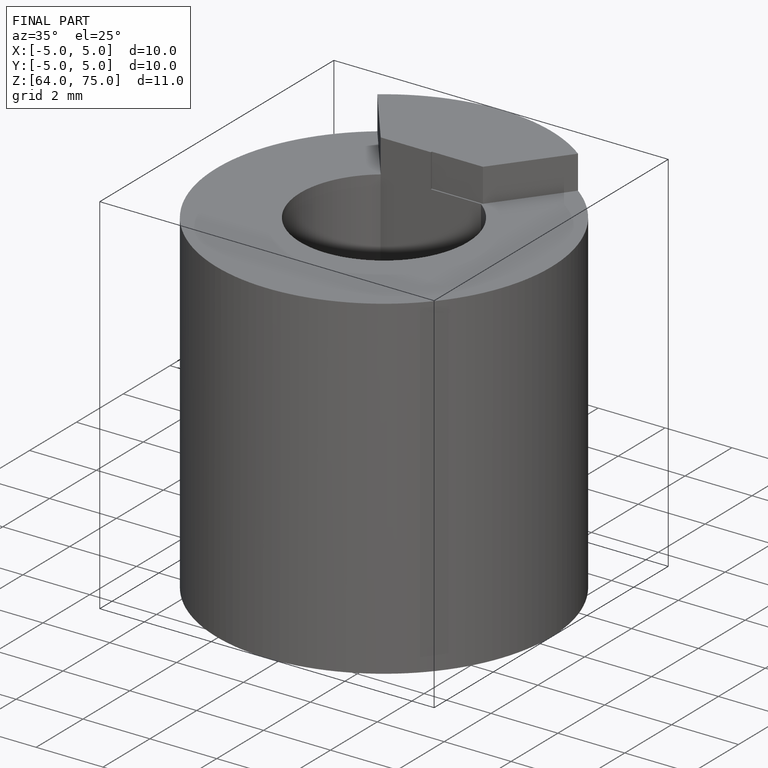
[diagram: finished part — iso view with bounding-box wireframe]
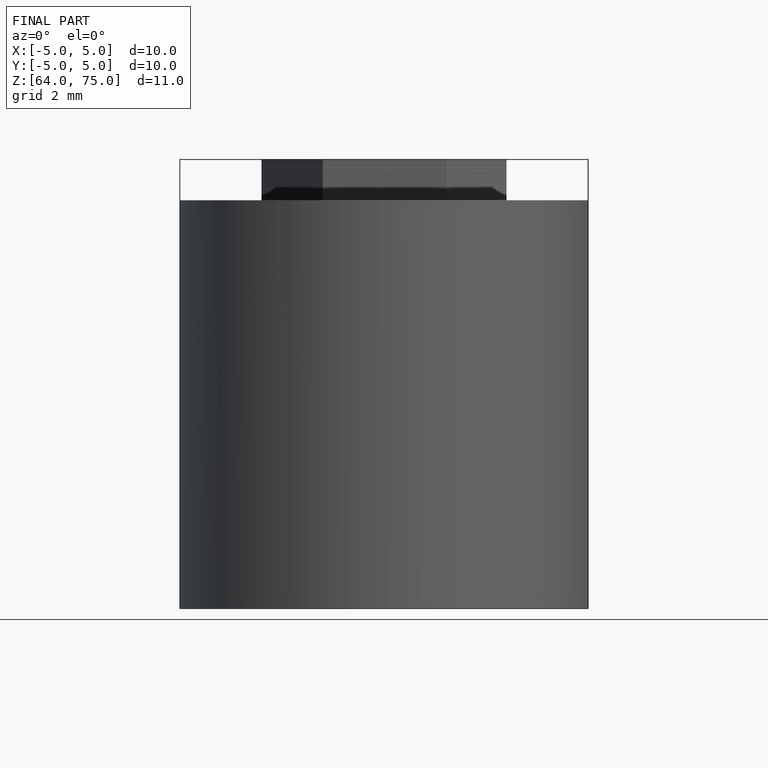
[diagram: finished part — front view with bounding-box wireframe]
